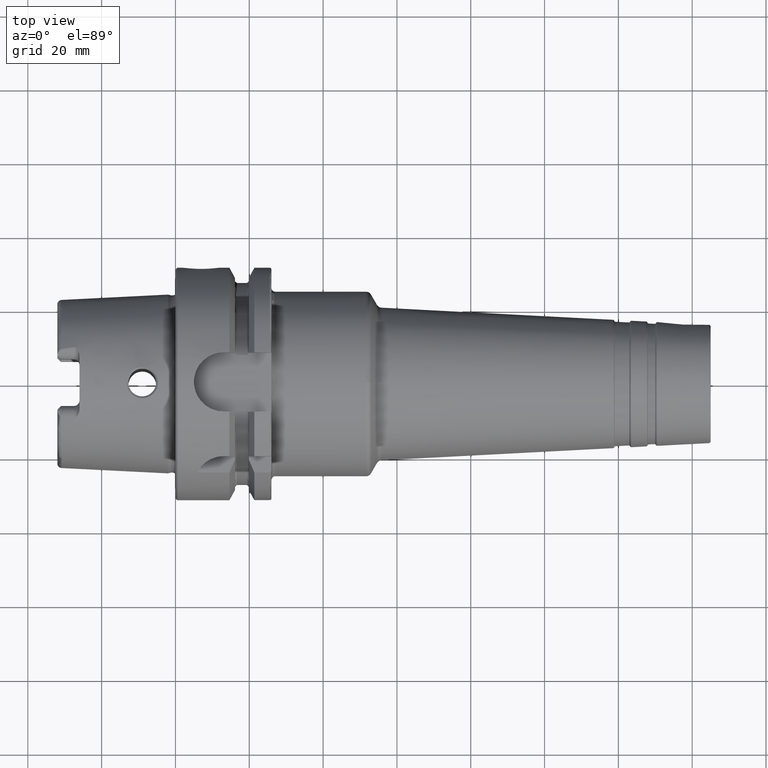
[diagram: clean part render]
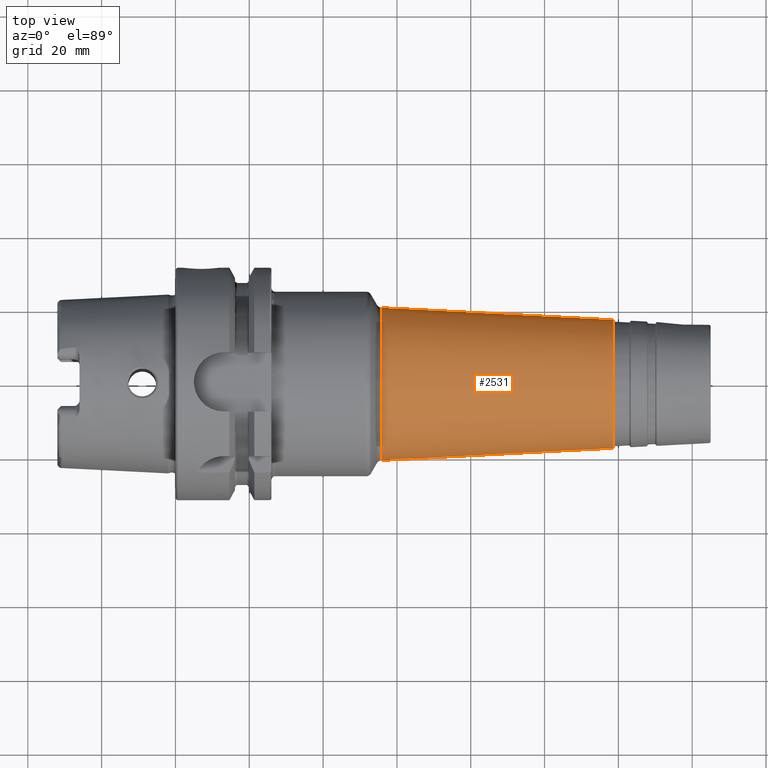
[diagram: same view with one face highlighted and labeled with its STEP entity id]
A machine part, top view. The second image highlights one B-rep face of the part: STEP entity #2531.
In plain terms, the highlighted conical surface has half-angle 3 deg.
Its self-contained STEP definition (entity closure, byte-faithful):
#222=FACE_OUTER_BOUND('',#357,.T.);
#357=EDGE_LOOP('',(#1697,#1698,#1699,#1700,#1701,#1702,#1703,#1704));
#502=LINE('',#3938,#619);
#619=VECTOR('',#3100,19.0461245134913);
#741=CIRCLE('',#2694,20.6740759768665);
#742=CIRCLE('',#2695,20.6740759768665);
#743=CIRCLE('',#2696,20.6740759768665);
#749=CIRCLE('',#2704,17.387635362879);
#750=CIRCLE('',#2705,17.387635362879);
#751=CIRCLE('',#2706,17.387635362879);
#963=VERTEX_POINT('',#3914);
#964=VERTEX_POINT('',#3916);
#965=VERTEX_POINT('',#3918);
#970=VERTEX_POINT('',#3933);
#971=VERTEX_POINT('',#3934);
#972=VERTEX_POINT('',#3936);
#1257=EDGE_CURVE('',#963,#964,#741,.T.);
#1258=EDGE_CURVE('',#964,#965,#742,.T.);
#1259=EDGE_CURVE('',#965,#963,#743,.T.);
#1266=EDGE_CURVE('',#970,#971,#749,.T.);
#1267=EDGE_CURVE('',#972,#970,#750,.T.);
#1268=EDGE_CURVE('',#972,#965,#502,.T.);
#1269=EDGE_CURVE('',#971,#972,#751,.T.);
#1697=ORIENTED_EDGE('',*,*,#1266,.F.);
#1698=ORIENTED_EDGE('',*,*,#1267,.F.);
#1699=ORIENTED_EDGE('',*,*,#1268,.T.);
#1700=ORIENTED_EDGE('',*,*,#1258,.F.);
#1701=ORIENTED_EDGE('',*,*,#1257,.F.);
#1702=ORIENTED_EDGE('',*,*,#1259,.F.);
#1703=ORIENTED_EDGE('',*,*,#1268,.F.);
#1704=ORIENTED_EDGE('',*,*,#1269,.F.);
#2504=CONICAL_SURFACE('',#2703,19.0461245134913,0.05235987755983);
#2531=ADVANCED_FACE('',(#222),#2504,.T.);
#2694=AXIS2_PLACEMENT_3D('',#3917,#3075,#3076);
#2695=AXIS2_PLACEMENT_3D('',#3919,#3077,#3078);
#2696=AXIS2_PLACEMENT_3D('',#3920,#3079,#3080);
#2703=AXIS2_PLACEMENT_3D('',#3932,#3094,#3095);
#2704=AXIS2_PLACEMENT_3D('',#3935,#3096,#3097);
#2705=AXIS2_PLACEMENT_3D('',#3937,#3098,#3099);
#2706=AXIS2_PLACEMENT_3D('',#3939,#3101,#3102);
#3075=DIRECTION('center_axis',(-1.,0.,0.));
#3076=DIRECTION('ref_axis',(0.,-1.,3.06161699786839E-17));
#3077=DIRECTION('center_axis',(-1.,0.,0.));
#3078=DIRECTION('ref_axis',(0.,-1.,3.06161699786839E-17));
#3079=DIRECTION('center_axis',(-1.,0.,0.));
#3080=DIRECTION('ref_axis',(0.,-1.,3.06161699786839E-17));
#3094=DIRECTION('center_axis',(-1.,0.,0.));
#3095=DIRECTION('ref_axis',(0.,1.,0.));
#3096=DIRECTION('center_axis',(1.,0.,0.));
#3097=DIRECTION('ref_axis',(0.,-1.,3.06161699786838E-17));
#3098=DIRECTION('center_axis',(1.,0.,0.));
#3099=DIRECTION('ref_axis',(0.,-1.,3.06161699786838E-17));
#3100=DIRECTION('',(-0.998629534754574,-0.052335956242944,-6.40930612932373E-18));
#3101=DIRECTION('center_axis',(1.,0.,0.));
#3102=DIRECTION('ref_axis',(0.,-1.,3.06161699786838E-17));
#3914=CARTESIAN_POINT('',(55.8133173965834,-2.53184409703988E-15,20.6740759768665));
#3916=CARTESIAN_POINT('',(55.8133173965834,20.6740759768665,-6.32961024259969E-15));
#3917=CARTESIAN_POINT('Origin',(55.8133173965834,0.,-3.16480512129985E-15));
#3918=CARTESIAN_POINT('',(55.8133173965834,-20.6740759768665,-2.53184409703988E-15));
#3919=CARTESIAN_POINT('Origin',(55.8133173965834,0.,-3.16480512129985E-15));
#3920=CARTESIAN_POINT('Origin',(55.8133173965834,0.,-3.16480512129985E-15));
#3932=CARTESIAN_POINT('Origin',(86.8764817902327,0.,0.));
#3933=CARTESIAN_POINT('',(118.522339968181,17.387635362879,-1.06468559959455E-15));
#3934=CARTESIAN_POINT('',(118.522339968181,-2.12937119918911E-15,17.387635362879));
#3935=CARTESIAN_POINT('Origin',(118.522339968181,0.,-2.66171399898638E-15));
#3936=CARTESIAN_POINT('',(118.522339968181,-17.387635362879,-2.12937119918911E-15));
#3937=CARTESIAN_POINT('Origin',(118.522339968181,0.,-2.66171399898638E-15));
#3938=CARTESIAN_POINT('',(86.8764817902327,-19.0461245134913,-2.33247754216091E-15));
#3939=CARTESIAN_POINT('Origin',(118.522339968181,0.,-2.66171399898638E-15));